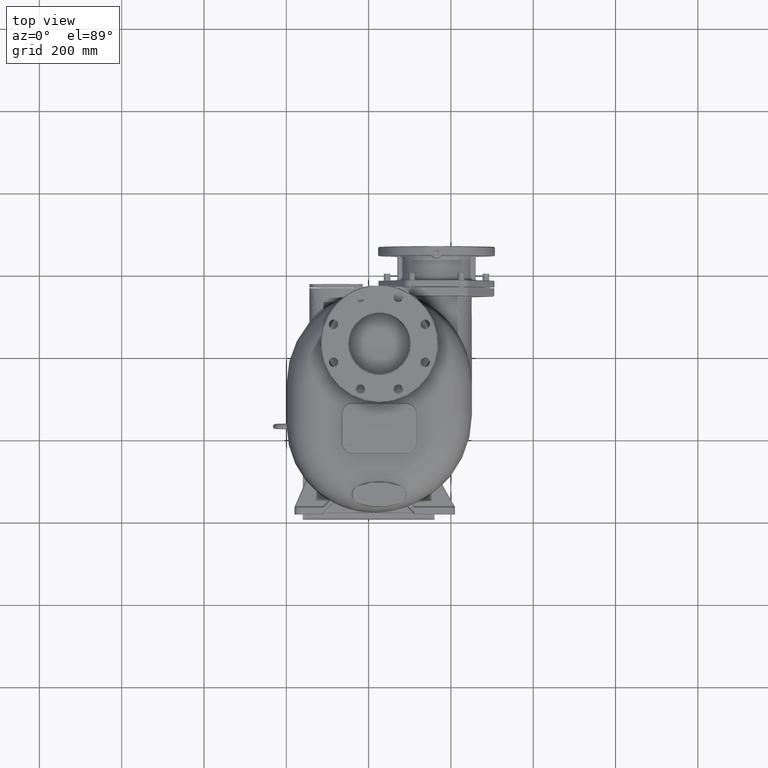
[diagram: clean part render]
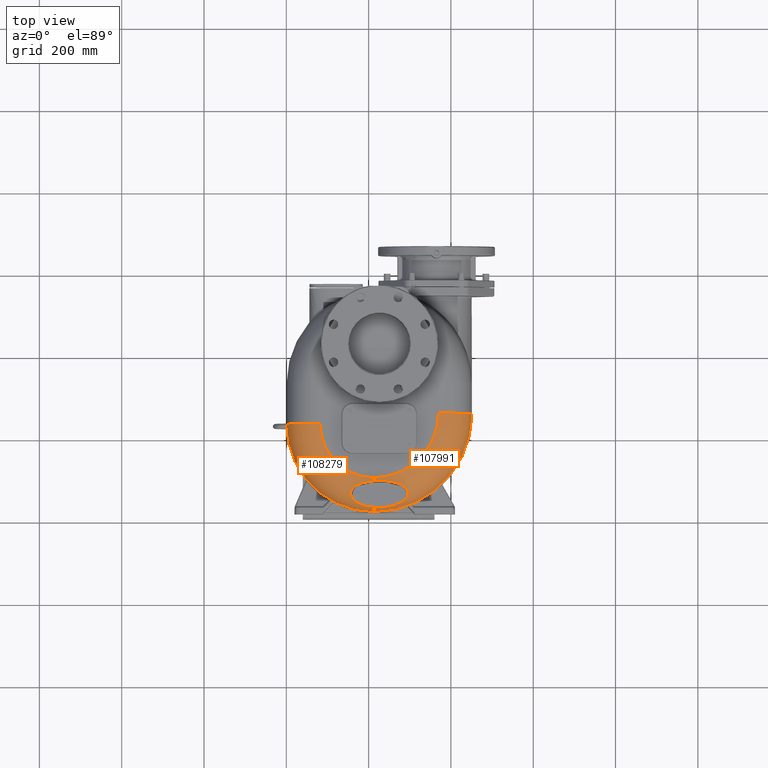
[diagram: same view with one multi-face feature highlighted, each face labeled with its STEP entity id]
A machine part, top view. The highlighted faces form ONE feature: a constant-radius fillet chain: 2 tangent blend faces with common blend radius 81 mm. The faces share edges in the B-rep.
Their STEP definitions:
[1] entity #108279 (Torus):
#38535=CARTESIAN_POINT('',(1.3E1,2.16E2,9.4E1));
#38536=DIRECTION('',(0.E0,0.E0,1.E0));
#38537=DIRECTION('',(-1.E0,0.E0,0.E0));
#38538=AXIS2_PLACEMENT_3D('',#38535,#38536,#38537);
#41311=CARTESIAN_POINT('',(1.3E1,1.363278025361E1,1.323108332678E2));
#41479=CARTESIAN_POINT('',(1.299999999999E1,7.784065249736E1,1.746829829849E2));
#41481=CARTESIAN_POINT('',(1.3E1,8.5E1,9.4E1));
#41482=DIRECTION('',(1.E0,0.E0,0.E0));
#41483=DIRECTION('',(0.E0,0.E0,1.E0));
#41484=AXIS2_PLACEMENT_3D('',#41481,#41482,#41483);
#41486=CARTESIAN_POINT('',(1.3E1,8.5E1,9.4E1));
#41487=DIRECTION('',(1.E0,0.E0,0.E0));
#41488=DIRECTION('',(0.E0,-8.810767869925E-1,4.729732502194E-1));
#41489=AXIS2_PLACEMENT_3D('',#41486,#41487,#41488);
#41501=CARTESIAN_POINT('',(1.299999999999E1,7.784065249736E1,1.746829829849E2));
#41502=CARTESIAN_POINT('',(1.244553714829E1,7.779806956061E1,1.746792044707E2));
#41503=CARTESIAN_POINT('',(1.134183423742E1,7.770769678981E1,1.746705265707E2));
#41504=CARTESIAN_POINT('',(9.699757664950E0,7.755644554239E1,1.746539980732E2));
#41505=CARTESIAN_POINT('',(8.073686977598E0,7.738987062858E1,1.746338156008E2));
#41506=CARTESIAN_POINT('',(6.464871554986E0,7.720826024393E1,1.746098034248E2));
#41507=CARTESIAN_POINT('',(4.874892532193E0,7.701193222903E1,1.745817665249E2));
#41508=CARTESIAN_POINT('',(3.305221677656E0,7.680129409235E1,1.745495026881E2));
#41509=CARTESIAN_POINT('',(1.757354840660E0,7.657672612600E1,1.745127966902E2));
#41510=CARTESIAN_POINT('',(2.327840045208E-1,7.633868265683E1,
1.744714366868E2));
#41511=CARTESIAN_POINT('',(-1.267102820674E0,7.608766265939E1,
1.744252171906E2));
#41512=CARTESIAN_POINT('',(-2.741278317563E0,7.582407887206E1,
1.743739243866E2));
#41513=CARTESIAN_POINT('',(-4.188675821983E0,7.554845477320E1,
1.743173675814E2));
#41514=CARTESIAN_POINT('',(-5.608395762124E0,7.526126693898E1,
1.742553626895E2));
#41515=CARTESIAN_POINT('',(-6.999655913846E0,7.496298881410E1,
1.741877398661E2));
#41516=CARTESIAN_POINT('',(-8.361678124405E0,7.465418207784E1,
1.741143627067E2));
#41517=CARTESIAN_POINT('',(-9.693975672295E0,7.433528675545E1,
1.740350946851E2));
#41518=CARTESIAN_POINT('',(-1.099609739216E1,7.400680699593E1,
1.739498308758E2));
#41519=CARTESIAN_POINT('',(-1.226767437093E1,7.366925276322E1,
1.738584917382E2));
#41520=CARTESIAN_POINT('',(-1.350851520461E1,7.332304365442E1,
1.737610035583E2));
#41521=CARTESIAN_POINT('',(-1.471843317636E1,7.296868929554E1,
1.736573333258E2));
#41522=CARTESIAN_POINT('',(-1.589738334766E1,7.260662232571E1,
1.735474568272E2));
#41523=CARTESIAN_POINT('',(-1.704543289633E1,7.223723652061E1,
1.734313621872E2));
#41524=CARTESIAN_POINT('',(-1.816265632786E1,7.186099452472E1,
1.733090748611E2));
#41525=CARTESIAN_POINT('',(-1.924953530315E1,7.147815799064E1,
1.731805843151E2));
#41526=CARTESIAN_POINT('',(-2.030663207400E1,7.108897382508E1,
1.730458859410E2));
#41527=CARTESIAN_POINT('',(-2.133450229444E1,7.069370194106E1,
1.729049902444E2));
#41528=CARTESIAN_POINT('',(-2.233355721686E1,7.029260673208E1,
1.727579287663E2));
#41529=CARTESIAN_POINT('',(-2.330429596845E1,6.988595527585E1,
1.726047416117E2));
#41530=CARTESIAN_POINT('',(-2.424712006149E1,6.947402624871E1,
1.724454891947E2));
#41531=CARTESIAN_POINT('',(-2.516231376310E1,6.905709820622E1,
1.722802523382E2));
#41532=CARTESIAN_POINT('',(-2.605023196009E1,6.863547384452E1,
1.721091271209E2));
#41533=CARTESIAN_POINT('',(-2.691130291511E1,6.820937749631E1,
1.719321956842E2));
#41534=CARTESIAN_POINT('',(-2.774600626023E1,6.777898041427E1,
1.717495296289E2));
#41535=CARTESIAN_POINT('',(-2.855485980441E1,6.734446434950E1,
1.715612059047E2));
#41536=CARTESIAN_POINT('',(-2.933832526555E1,6.690597423986E1,
1.713672999634E2));
#41537=CARTESIAN_POINT('',(-3.009689199644E1,6.646363050161E1,
1.711678809135E2));
#41538=CARTESIAN_POINT('',(-3.083107712075E1,6.601754925964E1,
1.709630157399E2));
#41539=CARTESIAN_POINT('',(-3.154136302940E1,6.556779713466E1,
1.707527595090E2));
#41540=CARTESIAN_POINT('',(-3.222826967108E1,6.511441280380E1,
1.705371531770E2));
#41541=CARTESIAN_POINT('',(-3.289230513240E1,6.465743196281E1,
1.703162347739E2));
#41542=CARTESIAN_POINT('',(-3.353393277120E1,6.419685430015E1,
1.700900311895E2));
#41543=CARTESIAN_POINT('',(-3.415364822003E1,6.373264772798E1,
1.698585497718E2));
#41544=CARTESIAN_POINT('',(-3.475192461521E1,6.326477189168E1,
1.696217907795E2));
#41545=CARTESIAN_POINT('',(-3.532921277068E1,6.279313686223E1,
1.693797316946E2));
#41546=CARTESIAN_POINT('',(-3.588597510124E1,6.231762193331E1,
1.691323275721E2));
#41547=CARTESIAN_POINT('',(-3.642256581178E1,6.183816511085E1,
1.688795595075E2));
#41548=CARTESIAN_POINT('',(-3.693930659569E1,6.135467015010E1,
1.686213922855E2));
#41549=CARTESIAN_POINT('',(-3.743658527980E1,6.086696124701E1,
1.683577407041E2));
#41550=CARTESIAN_POINT('',(-3.791487104957E1,6.037473120906E1,
1.680884414929E2));
#41551=CARTESIAN_POINT('',(-3.837471269326E1,5.987744850791E1,
1.678132017963E2));
#41552=CARTESIAN_POINT('',(-3.881583869027E1,5.937544641962E1,
1.675321945618E2));
#41553=CARTESIAN_POINT('',(-3.923747269391E1,5.886974695742E1,
1.672459947355E2));
#41554=CARTESIAN_POINT('',(-3.963905052886E1,5.836126740473E1,
1.669551479588E2));
#41555=CARTESIAN_POINT('',(-4.002032380338E1,5.785076549029E1,
1.666601170991E2));
#41556=CARTESIAN_POINT('',(-4.038108776787E1,5.733902292176E1,
1.663614002514E2));
#41557=CARTESIAN_POINT('',(-4.072139032272E1,5.682658040855E1,
1.660593720981E2));
#41558=CARTESIAN_POINT('',(-4.104202588443E1,5.631294017186E1,
1.657537844266E2));
#41559=CARTESIAN_POINT('',(-4.134360714781E1,5.579758926457E1,
1.654443759204E2));
#41560=CARTESIAN_POINT('',(-4.162656769299E1,5.528021011734E1,
1.651309861998E2));
#41561=CARTESIAN_POINT('',(-4.189117326028E1,5.476076291256E1,
1.648136102591E2));
#41562=CARTESIAN_POINT('',(-4.213763819879E1,5.423909566732E1,
1.644921850345E2));
#41563=CARTESIAN_POINT('',(-4.236619668327E1,5.371506110908E1,
1.641666337636E2));
#41564=CARTESIAN_POINT('',(-4.257704636E1,5.318848140098E1,1.638368572977E2));
#41565=CARTESIAN_POINT('',(-4.277029309083E1,5.265914533418E1,
1.635027412343E2));
#41566=CARTESIAN_POINT('',(-4.294603204900E1,5.212698789890E1,
1.631642434889E2));
#41567=CARTESIAN_POINT('',(-4.310428463705E1,5.159192735310E1,
1.628213191196E2));
#41568=CARTESIAN_POINT('',(-4.324503448823E1,5.105385610728E1,
1.624739071713E2));
#41569=CARTESIAN_POINT('',(-4.336830161882E1,5.051264027936E1,
1.621219140664E2));
#41570=CARTESIAN_POINT('',(-4.347400464703E1,4.996809939680E1,
1.617652269064E2));
#41571=CARTESIAN_POINT('',(-4.356202294576E1,4.942023901915E1,
1.614038455106E2));
#41572=CARTESIAN_POINT('',(-4.363221984911E1,4.886925258604E1,
1.610378902978E2));
#41573=CARTESIAN_POINT('',(-4.368440275502E1,4.831530104518E1,
1.606674775312E2));
#41574=CARTESIAN_POINT('',(-4.371843370374E1,4.775855899149E1,
1.602927234528E2));
#41575=CARTESIAN_POINT('',(-4.372891983878E1,4.738571796670E1,
1.600401176294E2));
#41576=CARTESIAN_POINT('',(-4.373108258469E1,4.719886811485E1,
1.599131193948E2));
#41578=CARTESIAN_POINT('',(-4.373108258469E1,4.719886811485E1,
1.599131193948E2));
#41579=CARTESIAN_POINT('',(-4.373328602502E1,4.700848269575E1,
1.597837170996E2));
#41580=CARTESIAN_POINT('',(-4.373140112179E1,4.662668044502E1,
1.595233511070E2));
#41581=CARTESIAN_POINT('',(-4.370945965032E1,4.605088534469E1,
1.591281122762E2));
#41582=CARTESIAN_POINT('',(-4.366812490201E1,4.547215729344E1,
1.587283050793E2));
#41583=CARTESIAN_POINT('',(-4.360711615494E1,4.489062862121E1,
1.583240321315E2));
#41584=CARTESIAN_POINT('',(-4.352616600458E1,4.430643492682E1,
1.579153964054E2));
#41585=CARTESIAN_POINT('',(-4.342495290027E1,4.371974257819E1,
1.575025377004E2));
#41586=CARTESIAN_POINT('',(-4.330318254168E1,4.313069496100E1,
1.570855739380E2));
#41587=CARTESIAN_POINT('',(-4.316053802502E1,4.253943355180E1,
1.566646272013E2));
#41588=CARTESIAN_POINT('',(-4.299667706911E1,4.194613493709E1,
1.562398542652E2));
#41589=CARTESIAN_POINT('',(-4.281126534453E1,4.135090321656E1,
1.558113531328E2));
#41590=CARTESIAN_POINT('',(-4.260392506802E1,4.075387644003E1,
1.553792576938E2));
#41591=CARTESIAN_POINT('',(-4.237427091184E1,4.015519811587E1,
1.549437076773E2));
#41592=CARTESIAN_POINT('',(-4.212190553704E1,3.955496744026E1,
1.545048065442E2));
#41593=CARTESIAN_POINT('',(-4.184640122315E1,3.895334601246E1,
1.540627151575E2));
#41594=CARTESIAN_POINT('',(-4.154731188310E1,3.835043810977E1,
1.536175478291E2));
#41595=CARTESIAN_POINT('',(-4.122415583112E1,3.774633078482E1,
1.531694067797E2));
#41596=CARTESIAN_POINT('',(-4.087643167830E1,3.714117160195E1,
1.527184475588E2));
#41597=CARTESIAN_POINT('',(-4.050359138797E1,3.653501604646E1,
1.522647486492E2));
#41598=CARTESIAN_POINT('',(-4.010506481121E1,3.592796824646E1,
1.518084283301E2));
#41599=CARTESIAN_POINT('',(-3.968024760013E1,3.532014404002E1,
1.513496166203E2));
#41600=CARTESIAN_POINT('',(-3.922846373576E1,3.471157536535E1,
1.508883710899E2));
#41601=CARTESIAN_POINT('',(-3.874904123229E1,3.410238646464E1,
1.504248220674E2));
#41602=CARTESIAN_POINT('',(-3.824122417929E1,3.349264892677E1,
1.499590580078E2));
#41603=CARTESIAN_POINT('',(-3.770420256213E1,3.288241297546E1,
1.494911412633E2));
#41604=CARTESIAN_POINT('',(-3.713717785446E1,3.227182042241E1,
1.490212042292E2));
#41605=CARTESIAN_POINT('',(-3.653920718424E1,3.166092060651E1,
1.485493036616E2));
#41606=CARTESIAN_POINT('',(-3.590935610721E1,3.104982130692E1,
1.480755276740E2));
#41607=CARTESIAN_POINT('',(-3.524665138775E1,3.043867407269E1,
1.475999965984E2));
#41608=CARTESIAN_POINT('',(-3.454996339584E1,2.982755889257E1,
1.471227668542E2));
#41609=CARTESIAN_POINT('',(-3.381823702834E1,2.921666364747E1,
1.466439576921E2));
#41610=CARTESIAN_POINT('',(-3.305027296729E1,2.860615943068E1,
1.461636763300E2));
#41611=CARTESIAN_POINT('',(-3.224479554426E1,2.799621995452E1,
1.456820125657E2));
#41612=CARTESIAN_POINT('',(-3.140060471589E1,2.738712020579E1,
1.451991091460E2));
#41613=CARTESIAN_POINT('',(-3.051626813873E1,2.677910091009E1,
1.447150876028E2));
#41614=CARTESIAN_POINT('',(-2.959043347079E1,2.617248276108E1,
1.442300895049E2));
#41615=CARTESIAN_POINT('',(-2.862168332938E1,2.556762996023E1,
1.437442737535E2));
#41616=CARTESIAN_POINT('',(-2.760838843727E1,2.496489670781E1,
1.432577827151E2));
#41617=CARTESIAN_POINT('',(-2.654906152911E1,2.436472925261E1,
1.427707661609E2));
#41618=CARTESIAN_POINT('',(-2.544214528891E1,2.376769595105E1,
1.422834806852E2));
#41619=CARTESIAN_POINT('',(-2.428614927735E1,2.317443813252E1,
1.417961899347E2));
#41620=CARTESIAN_POINT('',(-2.307968137192E1,2.258566726630E1,
1.413091517248E2));
#41621=CARTESIAN_POINT('',(-2.182120993267E1,2.200221520214E1,
1.408227468673E2));
#41622=CARTESIAN_POINT('',(-2.050940147683E1,2.142495840037E1,
1.403372889723E2));
#41623=CARTESIAN_POINT('',(-1.914280870690E1,2.085483320171E1,
1.398531196365E2));
#41624=CARTESIAN_POINT('',(-1.771988730485E1,2.029284079069E1,
1.393706024780E2));
#41625=CARTESIAN_POINT('',(-1.623927532923E1,1.974002559565E1,
1.388900179869E2));
#41626=CARTESIAN_POINT('',(-1.469973804761E1,1.919766687025E1,
1.384118644196E2));
#41627=CARTESIAN_POINT('',(-1.310016541215E1,1.866706271912E1,
1.379365480712E2));
#41628=CARTESIAN_POINT('',(-1.143969446494E1,1.814962668174E1,
1.374645003529E2));
#41629=CARTESIAN_POINT('',(-9.717864821511E0,1.764703194106E1,
1.369963978263E2));
#41630=CARTESIAN_POINT('',(-7.934295919351E0,1.716085147903E1,
1.365326787705E2));
#41631=CARTESIAN_POINT('',(-6.089090868848E0,1.669289986537E1,
1.360740179738E2));
#41632=CARTESIAN_POINT('',(-4.182658384068E0,1.624505220818E1,
1.356211153244E2));
#41633=CARTESIAN_POINT('',(-2.215559436378E0,1.581910009717E1,
1.351744779454E2));
#41634=CARTESIAN_POINT('',(-1.903477044404E-1,1.541735592529E1,
1.347352575325E2));
#41635=CARTESIAN_POINT('',(1.890348004364E0,1.504187561523E1,1.343043200259E2));
#41636=CARTESIAN_POINT('',(4.023311504254E0,1.469468663020E1,1.338825773627E2));
#41637=CARTESIAN_POINT('',(6.204466846682E0,1.437788619058E1,1.334712230803E2));
#41638=CARTESIAN_POINT('',(8.429555363647E0,1.409321195766E1,1.330711012472E2));
#41639=CARTESIAN_POINT('',(1.069473223705E1,1.384229823454E1,1.326831531908E2));
#41640=CARTESIAN_POINT('',(1.222763649690E1,1.369860986193E1,1.324334637403E2));
#41641=CARTESIAN_POINT('',(1.3E1,1.363278025361E1,1.323108332678E2));
#41643=CARTESIAN_POINT('',(-1.18E2,2.16E2,9.4E1));
#41644=DIRECTION('',(0.E0,-1.E0,0.E0));
#41645=DIRECTION('',(0.E0,0.E0,1.E0));
#41646=AXIS2_PLACEMENT_3D('',#41643,#41644,#41645);
#42371=CARTESIAN_POINT('',(1.3E1,2.16E2,1.75E2));
#42372=DIRECTION('',(0.E0,0.E0,1.E0));
#42373=DIRECTION('',(-1.E0,0.E0,0.E0));
#42374=AXIS2_PLACEMENT_3D('',#42371,#42372,#42373);
#54194=CARTESIAN_POINT('',(-1.99E2,2.160000000004E2,9.4E1));
#54196=VERTEX_POINT('',#54194);
#54251=CARTESIAN_POINT('',(1.3E1,8.5E1,1.75E2));
#54252=VERTEX_POINT('',#54251);
#54253=CARTESIAN_POINT('',(1.3E1,4.E0,9.4E1));
#54254=VERTEX_POINT('',#54253);
#54255=CARTESIAN_POINT('',(-1.18E2,2.16E2,1.75E2));
#54256=VERTEX_POINT('',#54255);
#54259=VERTEX_POINT('',#41311);
#54262=VERTEX_POINT('',#41479);
#54264=VERTEX_POINT('',#41576);
#108262=CARTESIAN_POINT('',(1.3E1,2.16E2,9.4E1));
#108263=DIRECTION('',(0.E0,0.E0,-1.E0));
#108264=DIRECTION('',(-9.999684504718E-1,7.943428798761E-3,0.E0));
#108265=AXIS2_PLACEMENT_3D('',#108262,#108263,#108264);
#108266=TOROIDAL_SURFACE('',#108265,1.31E2,8.1E1);
#108268=ORIENTED_EDGE('',*,*,#108267,.T.);
#108269=ORIENTED_EDGE('',*,*,#108252,.T.);
#108270=ORIENTED_EDGE('',*,*,#107987,.T.);
#108271=ORIENTED_EDGE('',*,*,#105283,.F.);
#108273=ORIENTED_EDGE('',*,*,#108272,.F.);
#108275=ORIENTED_EDGE('',*,*,#108274,.T.);
#108276=ORIENTED_EDGE('',*,*,#107980,.T.);
#108277=EDGE_LOOP('',(#108268,#108269,#108270,#108271,#108273,#108275,#108276));
#108278=FACE_OUTER_BOUND('',#108277,.F.);
#108279=ADVANCED_FACE('',(#108278),#108266,.T.);
#38539=CIRCLE('',#38538,2.12E2);
#41485=CIRCLE('',#41484,8.1E1);
#41490=CIRCLE('',#41489,8.1E1);
#41577=B_SPLINE_CURVE_WITH_KNOTS('',3,(#41501,#41502,#41503,#41504,#41505,
#41506,#41507,#41508,#41509,#41510,#41511,#41512,#41513,#41514,#41515,#41516,
#41517,#41518,#41519,#41520,#41521,#41522,#41523,#41524,#41525,#41526,#41527,
#41528,#41529,#41530,#41531,#41532,#41533,#41534,#41535,#41536,#41537,#41538,
#41539,#41540,#41541,#41542,#41543,#41544,#41545,#41546,#41547,#41548,#41549,
#41550,#41551,#41552,#41553,#41554,#41555,#41556,#41557,#41558,#41559,#41560,
#41561,#41562,#41563,#41564,#41565,#41566,#41567,#41568,#41569,#41570,#41571,
#41572,#41573,#41574,#41575,#41576),.UNSPECIFIED.,.F.,.F.,(4,1,1,1,1,1,1,1,1,1,
1,1,1,1,1,1,1,1,1,1,1,1,1,1,1,1,1,1,1,1,1,1,1,1,1,1,1,1,1,1,1,1,1,1,1,1,1,1,1,1,
1,1,1,1,1,1,1,1,1,1,1,1,1,1,1,1,1,1,1,1,1,1,1,4),(0.E0,1.369863013699E-2,
2.739726027397E-2,4.109589041096E-2,5.479452054795E-2,6.849315068493E-2,
8.219178082192E-2,9.589041095890E-2,1.095890410959E-1,1.232876712329E-1,
1.369863013699E-1,1.506849315068E-1,1.643835616438E-1,1.780821917808E-1,
1.917808219178E-1,2.054794520548E-1,2.191780821918E-1,2.328767123288E-1,
2.465753424658E-1,2.602739726027E-1,2.739726027397E-1,2.876712328767E-1,
3.013698630137E-1,3.150684931507E-1,3.287671232877E-1,3.424657534247E-1,
3.561643835616E-1,3.698630136986E-1,3.835616438356E-1,3.972602739726E-1,
4.109589041096E-1,4.246575342466E-1,4.383561643836E-1,4.520547945205E-1,
4.657534246575E-1,4.794520547945E-1,4.931506849315E-1,5.068493150685E-1,
5.205479452055E-1,5.342465753425E-1,5.479452054795E-1,5.616438356164E-1,
5.753424657534E-1,5.890410958904E-1,6.027397260274E-1,6.164383561644E-1,
6.301369863014E-1,6.438356164384E-1,6.575342465753E-1,6.712328767123E-1,
6.849315068493E-1,6.986301369863E-1,7.123287671233E-1,7.260273972603E-1,
7.397260273973E-1,7.534246575342E-1,7.671232876712E-1,7.808219178082E-1,
7.945205479452E-1,8.082191780822E-1,8.219178082192E-1,8.356164383562E-1,
8.493150684932E-1,8.630136986301E-1,8.767123287671E-1,8.904109589041E-1,
9.041095890411E-1,9.178082191781E-1,9.315068493151E-1,9.452054794521E-1,
9.589041095890E-1,9.726027397260E-1,9.863013698630E-1,1.E0),.UNSPECIFIED.);
#41642=B_SPLINE_CURVE_WITH_KNOTS('',3,(#41578,#41579,#41580,#41581,#41582,
#41583,#41584,#41585,#41586,#41587,#41588,#41589,#41590,#41591,#41592,#41593,
#41594,#41595,#41596,#41597,#41598,#41599,#41600,#41601,#41602,#41603,#41604,
#41605,#41606,#41607,#41608,#41609,#41610,#41611,#41612,#41613,#41614,#41615,
#41616,#41617,#41618,#41619,#41620,#41621,#41622,#41623,#41624,#41625,#41626,
#41627,#41628,#41629,#41630,#41631,#41632,#41633,#41634,#41635,#41636,#41637,
#41638,#41639,#41640,#41641),.UNSPECIFIED.,.F.,.F.,(4,1,1,1,1,1,1,1,1,1,1,1,1,1,
1,1,1,1,1,1,1,1,1,1,1,1,1,1,1,1,1,1,1,1,1,1,1,1,1,1,1,1,1,1,1,1,1,1,1,1,1,1,1,1,
1,1,1,1,1,1,1,4),(0.E0,1.639344262295E-2,3.278688524590E-2,4.918032786885E-2,
6.557377049180E-2,8.196721311475E-2,9.836065573770E-2,1.147540983607E-1,
1.311475409836E-1,1.475409836066E-1,1.639344262295E-1,1.803278688525E-1,
1.967213114754E-1,2.131147540984E-1,2.295081967213E-1,2.459016393443E-1,
2.622950819672E-1,2.786885245902E-1,2.950819672131E-1,3.114754098361E-1,
3.278688524590E-1,3.442622950820E-1,3.606557377049E-1,3.770491803279E-1,
3.934426229508E-1,4.098360655738E-1,4.262295081967E-1,4.426229508197E-1,
4.590163934426E-1,4.754098360656E-1,4.918032786885E-1,5.081967213115E-1,
5.245901639344E-1,5.409836065574E-1,5.573770491803E-1,5.737704918033E-1,
5.901639344262E-1,6.065573770492E-1,6.229508196721E-1,6.393442622951E-1,
6.557377049180E-1,6.721311475410E-1,6.885245901639E-1,7.049180327869E-1,
7.213114754098E-1,7.377049180328E-1,7.540983606557E-1,7.704918032787E-1,
7.868852459016E-1,8.032786885246E-1,8.196721311475E-1,8.360655737705E-1,
8.524590163934E-1,8.688524590164E-1,8.852459016393E-1,9.016393442623E-1,
9.180327868852E-1,9.344262295082E-1,9.508196721311E-1,9.672131147541E-1,
9.836065573770E-1,1.E0),.UNSPECIFIED.);
#41647=CIRCLE('',#41646,8.1E1);
#42375=CIRCLE('',#42374,1.31E2);
#105283=EDGE_CURVE('',#54196,#54254,#38539,.T.);
#107980=EDGE_CURVE('',#54252,#54262,#41485,.T.);
#107987=EDGE_CURVE('',#54259,#54254,#41490,.T.);
#108252=EDGE_CURVE('',#54264,#54259,#41642,.T.);
#108267=EDGE_CURVE('',#54262,#54264,#41577,.T.);
#108272=EDGE_CURVE('',#54256,#54196,#41647,.T.);
#108274=EDGE_CURVE('',#54256,#54252,#42375,.T.);
[2] entity #107991 (Torus):
#39086=CARTESIAN_POINT('',(1.3E1,2.42E2,9.4E1));
#39087=DIRECTION('',(0.E0,0.E0,1.E0));
#39088=DIRECTION('',(0.E0,-1.E0,0.E0));
#39089=AXIS2_PLACEMENT_3D('',#39086,#39087,#39088);
#41311=CARTESIAN_POINT('',(1.3E1,1.363278025361E1,1.323108332678E2));
#41312=CARTESIAN_POINT('',(1.374555449030E1,1.356947936981E1,1.321929159865E2));
#41313=CARTESIAN_POINT('',(1.524084312153E1,1.345455072807E1,1.319638233510E2));
#41314=CARTESIAN_POINT('',(1.749793679789E1,1.331721406541E1,1.316405377955E2));
#41315=CARTESIAN_POINT('',(1.976220701034E1,1.321540285107E1,1.313388376110E2));
#41316=CARTESIAN_POINT('',(2.202897011508E1,1.314914611051E1,1.310594774055E2));
#41317=CARTESIAN_POINT('',(2.429302126710E1,1.311841430698E1,1.308034259133E2));
#41318=CARTESIAN_POINT('',(2.654936909042E1,1.312288453073E1,1.305714059698E2));
#41319=CARTESIAN_POINT('',(2.879253267763E1,1.316203132697E1,1.303641189346E2));
#41320=CARTESIAN_POINT('',(3.101674278618E1,1.323507465947E1,1.301821588615E2));
#41321=CARTESIAN_POINT('',(3.321630553775E1,1.334092456779E1,1.300258495110E2));
#41322=CARTESIAN_POINT('',(3.538582157033E1,1.347841280720E1,1.298956415263E2));
#41323=CARTESIAN_POINT('',(3.751987319681E1,1.364606482799E1,1.297916810723E2));
#41324=CARTESIAN_POINT('',(3.961354069893E1,1.384216925607E1,1.297138265640E2));
#41325=CARTESIAN_POINT('',(4.166411083156E1,1.406519338546E1,1.296619765889E2));
#41326=CARTESIAN_POINT('',(4.366854482837E1,1.431336935544E1,1.296357107990E2));
#41327=CARTESIAN_POINT('',(4.562486243165E1,1.458501175040E1,1.296345710273E2));
#41328=CARTESIAN_POINT('',(4.753196597303E1,1.487854971024E1,1.296580666419E2));
#41329=CARTESIAN_POINT('',(4.938863645890E1,1.519228994133E1,1.297054573793E2));
#41330=CARTESIAN_POINT('',(5.119476029080E1,1.552480432405E1,1.297761310083E2));
#41331=CARTESIAN_POINT('',(5.295039370158E1,1.587468746011E1,1.298693537382E2));
#41332=CARTESIAN_POINT('',(5.465581021174E1,1.624059390064E1,1.299843304193E2));
#41333=CARTESIAN_POINT('',(5.631180013578E1,1.662139047255E1,1.301203787487E2));
#41334=CARTESIAN_POINT('',(5.791919304816E1,1.701595976922E1,1.302766966480E2));
#41335=CARTESIAN_POINT('',(5.947898473001E1,1.742332008604E1,1.304525560798E2));
#41336=CARTESIAN_POINT('',(6.099229934181E1,1.784259451904E1,1.306472512651E2));
#41337=CARTESIAN_POINT('',(6.246034021823E1,1.827297211061E1,1.308600437599E2));
#41338=CARTESIAN_POINT('',(6.388424488894E1,1.871372939236E1,1.310902707221E2));
#41339=CARTESIAN_POINT('',(6.526527235066E1,1.916422670904E1,1.313372636215E2));
#41340=CARTESIAN_POINT('',(6.660461685288E1,1.962387951190E1,1.316003771177E2));
#41341=CARTESIAN_POINT('',(6.790337406105E1,2.009214708328E1,1.318789948743E2));
#41342=CARTESIAN_POINT('',(6.916276597328E1,2.056858203436E1,1.321725244732E2));
#41343=CARTESIAN_POINT('',(7.038378803355E1,2.105272903275E1,1.324803776733E2));
#41344=CARTESIAN_POINT('',(7.156748310063E1,2.154420348146E1,1.328019992718E2));
#41345=CARTESIAN_POINT('',(7.271487294511E1,2.204266699685E1,1.331368547447E2));
#41346=CARTESIAN_POINT('',(7.382678815048E1,2.254775701753E1,1.334843961739E2));
#41347=CARTESIAN_POINT('',(7.490417352150E1,2.305920807460E1,1.338441350259E2));
#41348=CARTESIAN_POINT('',(7.594780450483E1,2.357672296699E1,1.342155565869E2));
#41349=CARTESIAN_POINT('',(7.695842569171E1,2.410003405992E1,1.345981686769E2));
#41350=CARTESIAN_POINT('',(7.793681314708E1,2.462893215547E1,1.349915192180E2));
#41351=CARTESIAN_POINT('',(7.888357244240E1,2.516315119328E1,1.353951091935E2));
#41352=CARTESIAN_POINT('',(7.979937482440E1,2.570250573226E1,1.358085079080E2));
#41353=CARTESIAN_POINT('',(8.068481012046E1,2.624679058739E1,1.362312618623E2));
#41354=CARTESIAN_POINT('',(8.154040366904E1,2.679579373420E1,1.366629148651E2));
#41355=CARTESIAN_POINT('',(8.236672217447E1,2.734936953940E1,1.371030703166E2));
#41356=CARTESIAN_POINT('',(8.316422303742E1,2.790731136185E1,1.375512711636E2));
#41357=CARTESIAN_POINT('',(8.393337852558E1,2.846946616968E1,1.380071182059E2));
#41358=CARTESIAN_POINT('',(8.467463859723E1,2.903568397904E1,1.384702104602E2));
#41359=CARTESIAN_POINT('',(8.538838898758E1,2.960578050749E1,1.389401160171E2));
#41360=CARTESIAN_POINT('',(8.607503727699E1,3.017963545908E1,1.394164729358E2));
#41361=CARTESIAN_POINT('',(8.673493992039E1,3.075708003004E1,1.398988645163E2));
#41362=CARTESIAN_POINT('',(8.736843292871E1,3.133796203254E1,1.403869006968E2));
#41363=CARTESIAN_POINT('',(8.797585213930E1,3.192215751081E1,1.408802221836E2));
#41364=CARTESIAN_POINT('',(8.855748941958E1,3.250948687114E1,1.413784109194E2));
#41365=CARTESIAN_POINT('',(8.911363189090E1,3.309981679914E1,1.418811095929E2));
#41366=CARTESIAN_POINT('',(8.964455076792E1,3.369299394010E1,1.423879383908E2));
#41367=CARTESIAN_POINT('',(9.015048998223E1,3.428883420617E1,1.428984913039E2));
#41368=CARTESIAN_POINT('',(9.063168742857E1,3.488719641385E1,1.434124191458E2));
#41369=CARTESIAN_POINT('',(9.108836342053E1,3.548788712883E1,1.439293170632E2));
#41370=CARTESIAN_POINT('',(9.152072324662E1,3.609071163010E1,1.444487901576E2));
#41371=CARTESIAN_POINT('',(9.192896344836E1,3.669549554336E1,1.449704750155E2));
#41372=CARTESIAN_POINT('',(9.231326869725E1,3.730200168700E1,1.454939456896E2));
#41373=CARTESIAN_POINT('',(9.267381641223E1,3.791001313679E1,1.460188110616E2));
#41374=CARTESIAN_POINT('',(9.301077692639E1,3.851930424899E1,1.465446803131E2));
#41375=CARTESIAN_POINT('',(9.332432350819E1,3.912960732484E1,1.470711247058E2));
#41376=CARTESIAN_POINT('',(9.361462412449E1,3.974068180711E1,1.475977579939E2));
#41377=CARTESIAN_POINT('',(9.388184153948E1,4.035224879858E1,1.481241656165E2));
#41378=CARTESIAN_POINT('',(9.412614830144E1,4.096400698443E1,1.486499190286E2));
#41379=CARTESIAN_POINT('',(9.434771132124E1,4.157567251161E1,1.491746235057E2));
#41380=CARTESIAN_POINT('',(9.454671811071E1,4.218694818094E1,1.496978756090E2));
#41381=CARTESIAN_POINT('',(9.472336679492E1,4.279754763319E1,1.502192922606E2));
#41382=CARTESIAN_POINT('',(9.487784233726E1,4.340718144728E1,1.507385054394E2));
#41383=CARTESIAN_POINT('',(9.501034644267E1,4.401549855094E1,1.512550967418E2));
#41384=CARTESIAN_POINT('',(9.512108529684E1,4.462215571993E1,1.517686710283E2));
#41385=CARTESIAN_POINT('',(9.521028024643E1,4.522685477822E1,1.522788843594E2));
#41386=CARTESIAN_POINT('',(9.527818802354E1,4.582936281408E1,1.527854503185E2));
#41387=CARTESIAN_POINT('',(9.532503650922E1,4.642944416094E1,1.532881003993E2));
#41388=CARTESIAN_POINT('',(9.535106683456E1,4.702687725904E1,1.537865824981E2));
#41389=CARTESIAN_POINT('',(9.535470739627E1,4.742318745853E1,1.541159068464E2));
#41390=CARTESIAN_POINT('',(9.535313771391E1,4.762085925553E1,1.542798226339E2));
#41392=CARTESIAN_POINT('',(9.535313771391E1,4.762085925553E1,1.542798226339E2));
#41393=CARTESIAN_POINT('',(9.535158046549E1,4.781691741832E1,1.544423996887E2));
#41394=CARTESIAN_POINT('',(9.534172661827E1,4.820798821862E1,1.547660308980E2));
#41395=CARTESIAN_POINT('',(9.530694732464E1,4.879153858810E1,1.552469256741E2));
#41396=CARTESIAN_POINT('',(9.525237073883E1,4.937170033012E1,1.557229646401E2));
#41397=CARTESIAN_POINT('',(9.517819314944E1,4.994826299052E1,1.561939544066E2));
#41398=CARTESIAN_POINT('',(9.508464989140E1,5.052102249796E1,1.566597004572E2));
#41399=CARTESIAN_POINT('',(9.497193550964E1,5.108975288240E1,1.571200135625E2));
#41400=CARTESIAN_POINT('',(9.484023676056E1,5.165439112657E1,1.575748336676E2));
#41401=CARTESIAN_POINT('',(9.468970706505E1,5.221498671247E1,1.580241895115E2));
#41402=CARTESIAN_POINT('',(9.452042641100E1,5.277155684404E1,1.584681018771E2));
#41403=CARTESIAN_POINT('',(9.433250757738E1,5.332413239216E1,1.589065847698E2));
#41404=CARTESIAN_POINT('',(9.412601087209E1,5.387272836058E1,1.593396506228E2));
#41405=CARTESIAN_POINT('',(9.390094647716E1,5.441736840637E1,1.597673262482E2));
#41406=CARTESIAN_POINT('',(9.365731798904E1,5.495818063820E1,1.601897007090E2));
#41407=CARTESIAN_POINT('',(9.339504330858E1,5.549524462615E1,1.606068435463E2));
#41408=CARTESIAN_POINT('',(9.311401723105E1,5.602867605303E1,1.610188425294E2));
#41409=CARTESIAN_POINT('',(9.281410447574E1,5.655862786975E1,1.614258031685E2));
#41410=CARTESIAN_POINT('',(9.249509024887E1,5.708518710029E1,1.618277977199E2));
#41411=CARTESIAN_POINT('',(9.215672515870E1,5.760854908487E1,1.622249585266E2));
#41412=CARTESIAN_POINT('',(9.179868863430E1,5.812889893846E1,1.626174111708E2));
#41413=CARTESIAN_POINT('',(9.142059959251E1,5.864636731508E1,1.630052469816E2));
#41414=CARTESIAN_POINT('',(9.102207403849E1,5.916113166212E1,1.633885668407E2));
#41415=CARTESIAN_POINT('',(9.060269218464E1,5.967326573026E1,1.637674053966E2));
#41416=CARTESIAN_POINT('',(9.016187580460E1,6.018298030003E1,1.641418927591E2));
#41417=CARTESIAN_POINT('',(8.969882063545E1,6.069071057770E1,1.645123023906E2));
#41418=CARTESIAN_POINT('',(8.921255958476E1,6.119684695184E1,1.648788790020E2));
#41419=CARTESIAN_POINT('',(8.870274918509E1,6.170110272967E1,1.652413590373E2));
#41420=CARTESIAN_POINT('',(8.816936683965E1,6.220292619056E1,1.655992920661E2));
#41421=CARTESIAN_POINT('',(8.761239062495E1,6.270177302325E1,1.659522527307E2));
#41422=CARTESIAN_POINT('',(8.703240965125E1,6.319670448315E1,1.662995351924E2));
#41423=CARTESIAN_POINT('',(8.643023728479E1,6.368672674218E1,1.666404219958E2));
#41424=CARTESIAN_POINT('',(8.580619880309E1,6.417136167087E1,1.669745766666E2));
#41425=CARTESIAN_POINT('',(8.515978863903E1,6.465082661331E1,1.673021358542E2));
#41426=CARTESIAN_POINT('',(8.449067039079E1,6.512513653549E1,1.676230990987E2));
#41427=CARTESIAN_POINT('',(8.379831156633E1,6.559441634409E1,1.679375383302E2));
#41428=CARTESIAN_POINT('',(8.308215865974E1,6.605878138114E1,1.682455083759E2));
#41429=CARTESIAN_POINT('',(8.234165568474E1,6.651828447914E1,1.685470251422E2));
#41430=CARTESIAN_POINT('',(8.157622617370E1,6.697295725393E1,1.688420876776E2));
#41431=CARTESIAN_POINT('',(8.078532277697E1,6.742280165738E1,1.691306688300E2));
#41432=CARTESIAN_POINT('',(7.996837531236E1,6.786777475055E1,1.694127200566E2));
#41433=CARTESIAN_POINT('',(7.912479599465E1,6.830782205317E1,1.696881846654E2));
#41434=CARTESIAN_POINT('',(7.825403907476E1,6.874286449017E1,1.699569862022E2));
#41435=CARTESIAN_POINT('',(7.735554245570E1,6.917276547454E1,1.702190278252E2));
#41436=CARTESIAN_POINT('',(7.642877167029E1,6.959737860701E1,1.704742056317E2));
#41437=CARTESIAN_POINT('',(7.547323004446E1,7.001653524537E1,1.707224052516E2));
#41438=CARTESIAN_POINT('',(7.448842477709E1,7.042999909520E1,1.709634945513E2));
#41439=CARTESIAN_POINT('',(7.347391052112E1,7.083754741465E1,1.711973473386E2));
#41440=CARTESIAN_POINT('',(7.242927937736E1,7.123891580083E1,1.714238293693E2));
#41441=CARTESIAN_POINT('',(7.135415807817E1,7.163378097129E1,1.716427978446E2));
#41442=CARTESIAN_POINT('',(7.024822214443E1,7.202185485215E1,1.718541296952E2));
#41443=CARTESIAN_POINT('',(6.911120060085E1,7.240277427429E1,1.720576922831E2));
#41444=CARTESIAN_POINT('',(6.794287372012E1,7.277615390168E1,1.722533629531E2));
#41445=CARTESIAN_POINT('',(6.674306832442E1,7.314164359585E1,1.724410455457E2));
#41446=CARTESIAN_POINT('',(6.551169515921E1,7.349879221529E1,1.726206357197E2));
#41447=CARTESIAN_POINT('',(6.424870852858E1,7.384718099399E1,1.727920612088E2));
#41448=CARTESIAN_POINT('',(6.295412666103E1,7.418639007246E1,1.729552720555E2));
#41449=CARTESIAN_POINT('',(6.162807533586E1,7.451591173362E1,1.731102218938E2));
#41450=CARTESIAN_POINT('',(6.027070178700E1,7.483531077657E1,1.732569109331E2));
#41451=CARTESIAN_POINT('',(5.888226534023E1,7.514409611057E1,1.733953525764E2));
#41452=CARTESIAN_POINT('',(5.746311762298E1,7.544174550661E1,1.735255837751E2));
#41453=CARTESIAN_POINT('',(5.601362639371E1,7.572781013281E1,1.736476883073E2));
#41454=CARTESIAN_POINT('',(5.453434101373E1,7.600174538463E1,1.737617569490E2));
#41455=CARTESIAN_POINT('',(5.302584817470E1,7.626305174979E1,1.738679219137E2));
#41456=CARTESIAN_POINT('',(5.148879738054E1,7.651125618231E1,1.739663486652E2));
#41457=CARTESIAN_POINT('',(4.992400309576E1,7.674581458037E1,1.740572161374E2));
#41458=CARTESIAN_POINT('',(4.833225306416E1,7.696627499115E1,1.741407475678E2));
#41459=CARTESIAN_POINT('',(4.671455235016E1,7.717214000754E1,1.742171773482E2));
#41460=CARTESIAN_POINT('',(4.507204591842E1,7.736291005654E1,1.742867599844E2));
#41461=CARTESIAN_POINT('',(4.340586654174E1,7.753817016881E1,1.743497810481E2));
#41462=CARTESIAN_POINT('',(4.171716124025E1,7.769746347388E1,1.744065340878E2));
#41463=CARTESIAN_POINT('',(4.000701094048E1,7.784040526037E1,1.744573313751E2));
#41464=CARTESIAN_POINT('',(3.827683973337E1,7.796660903105E1,1.745024805864E2));
#41465=CARTESIAN_POINT('',(3.652858319249E1,7.807565912617E1,1.745422779772E2));
#41466=CARTESIAN_POINT('',(3.476419529846E1,7.816725590452E1,1.745770289814E2));
#41467=CARTESIAN_POINT('',(3.298477535779E1,7.824111536502E1,1.746070393668E2));
#41468=CARTESIAN_POINT('',(3.119123310261E1,7.829697648165E1,1.746325963960E2));
#41469=CARTESIAN_POINT('',(2.938449858556E1,7.833463124442E1,1.746539632849E2));
#41470=CARTESIAN_POINT('',(2.756570393844E1,7.835392833068E1,1.746713737393E2));
#41471=CARTESIAN_POINT('',(2.573534404594E1,7.835477703971E1,1.746850329264E2));
#41472=CARTESIAN_POINT('',(2.389773536613E1,7.833700093219E1,1.746950718285E2));
#41473=CARTESIAN_POINT('',(2.205906377323E1,7.830059672400E1,1.747015977497E2));
#41474=CARTESIAN_POINT('',(2.022482491122E1,7.824577813919E1,1.747047109882E2));
#41475=CARTESIAN_POINT('',(1.839815145703E1,7.817248507951E1,1.747044601726E2));
#41476=CARTESIAN_POINT('',(1.658245740338E1,7.808084210558E1,1.747008651088E2));
#41477=CARTESIAN_POINT('',(1.478055333917E1,7.797104841513E1,1.746939104412E2));
#41478=CARTESIAN_POINT('',(1.359177182079E1,7.788607797407E1,1.746870133239E2));
#41479=CARTESIAN_POINT('',(1.299999999999E1,7.784065249736E1,1.746829829849E2));
#41481=CARTESIAN_POINT('',(1.3E1,8.5E1,9.4E1));
#41482=DIRECTION('',(1.E0,0.E0,0.E0));
#41483=DIRECTION('',(0.E0,0.E0,1.E0));
#41484=AXIS2_PLACEMENT_3D('',#41481,#41482,#41483);
#41486=CARTESIAN_POINT('',(1.3E1,8.5E1,9.4E1));
#41487=DIRECTION('',(1.E0,0.E0,0.E0));
#41488=DIRECTION('',(0.E0,-8.810767869925E-1,4.729732502194E-1));
#41489=AXIS2_PLACEMENT_3D('',#41486,#41487,#41488);
#42366=CARTESIAN_POINT('',(1.3E1,2.42E2,1.75E2));
#42367=DIRECTION('',(0.E0,0.E0,1.E0));
#42368=DIRECTION('',(0.E0,-1.E0,0.E0));
#42369=AXIS2_PLACEMENT_3D('',#42366,#42367,#42368);
#45189=CARTESIAN_POINT('',(1.7E2,2.42E2,9.4E1));
#45190=DIRECTION('',(0.E0,1.E0,0.E0));
#45191=DIRECTION('',(0.E0,0.E0,1.E0));
#45192=AXIS2_PLACEMENT_3D('',#45189,#45190,#45191);
#54140=CARTESIAN_POINT('',(2.51E2,2.42E2,9.4E1));
#54142=VERTEX_POINT('',#54140);
#54245=CARTESIAN_POINT('',(1.7E2,2.42E2,1.75E2));
#54247=VERTEX_POINT('',#54245);
#54251=CARTESIAN_POINT('',(1.3E1,8.5E1,1.75E2));
#54252=VERTEX_POINT('',#54251);
#54253=CARTESIAN_POINT('',(1.3E1,4.E0,9.4E1));
#54254=VERTEX_POINT('',#54253);
#54259=VERTEX_POINT('',#41311);
#54260=VERTEX_POINT('',#41390);
#54262=VERTEX_POINT('',#41479);
#107971=CARTESIAN_POINT('',(1.3E1,2.42E2,9.4E1));
#107972=DIRECTION('',(0.E0,0.E0,-1.E0));
#107973=DIRECTION('',(-7.075674636159E-3,-9.999749671009E-1,0.E0));
#107974=AXIS2_PLACEMENT_3D('',#107971,#107972,#107973);
#107975=TOROIDAL_SURFACE('',#107974,1.57E2,8.1E1);
#107977=ORIENTED_EDGE('',*,*,#107976,.T.);
#107979=ORIENTED_EDGE('',*,*,#107978,.T.);
#107981=ORIENTED_EDGE('',*,*,#107980,.F.);
#107983=ORIENTED_EDGE('',*,*,#107982,.T.);
#107985=ORIENTED_EDGE('',*,*,#107984,.T.);
#107986=ORIENTED_EDGE('',*,*,#105349,.F.);
#107988=ORIENTED_EDGE('',*,*,#107987,.F.);
#107989=EDGE_LOOP('',(#107977,#107979,#107981,#107983,#107985,#107986,#107988));
#107990=FACE_OUTER_BOUND('',#107989,.F.);
#107991=ADVANCED_FACE('',(#107990),#107975,.T.);
#39090=CIRCLE('',#39089,2.38E2);
#41391=B_SPLINE_CURVE_WITH_KNOTS('',3,(#41311,#41312,#41313,#41314,#41315,
#41316,#41317,#41318,#41319,#41320,#41321,#41322,#41323,#41324,#41325,#41326,
#41327,#41328,#41329,#41330,#41331,#41332,#41333,#41334,#41335,#41336,#41337,
#41338,#41339,#41340,#41341,#41342,#41343,#41344,#41345,#41346,#41347,#41348,
#41349,#41350,#41351,#41352,#41353,#41354,#41355,#41356,#41357,#41358,#41359,
#41360,#41361,#41362,#41363,#41364,#41365,#41366,#41367,#41368,#41369,#41370,
#41371,#41372,#41373,#41374,#41375,#41376,#41377,#41378,#41379,#41380,#41381,
#41382,#41383,#41384,#41385,#41386,#41387,#41388,#41389,#41390),.UNSPECIFIED.,
.F.,.F.,(4,1,1,1,1,1,1,1,1,1,1,1,1,1,1,1,1,1,1,1,1,1,1,1,1,1,1,1,1,1,1,1,1,1,1,
1,1,1,1,1,1,1,1,1,1,1,1,1,1,1,1,1,1,1,1,1,1,1,1,1,1,1,1,1,1,1,1,1,1,1,1,1,1,1,1,
1,1,4),(0.E0,1.298701298701E-2,2.597402597403E-2,3.896103896104E-2,
5.194805194805E-2,6.493506493506E-2,7.792207792208E-2,9.090909090909E-2,
1.038961038961E-1,1.168831168831E-1,1.298701298701E-1,1.428571428571E-1,
1.558441558442E-1,1.688311688312E-1,1.818181818182E-1,1.948051948052E-1,
2.077922077922E-1,2.207792207792E-1,2.337662337662E-1,2.467532467532E-1,
2.597402597403E-1,2.727272727273E-1,2.857142857143E-1,2.987012987013E-1,
3.116883116883E-1,3.246753246753E-1,3.376623376623E-1,3.506493506494E-1,
3.636363636364E-1,3.766233766234E-1,3.896103896104E-1,4.025974025974E-1,
4.155844155844E-1,4.285714285714E-1,4.415584415584E-1,4.545454545455E-1,
4.675324675325E-1,4.805194805195E-1,4.935064935065E-1,5.064935064935E-1,
5.194805194805E-1,5.324675324675E-1,5.454545454545E-1,5.584415584416E-1,
5.714285714286E-1,5.844155844156E-1,5.974025974026E-1,6.103896103896E-1,
6.233766233766E-1,6.363636363636E-1,6.493506493506E-1,6.623376623377E-1,
6.753246753247E-1,6.883116883117E-1,7.012987012987E-1,7.142857142857E-1,
7.272727272727E-1,7.402597402597E-1,7.532467532468E-1,7.662337662338E-1,
7.792207792208E-1,7.922077922078E-1,8.051948051948E-1,8.181818181818E-1,
8.311688311688E-1,8.441558441558E-1,8.571428571429E-1,8.701298701299E-1,
8.831168831169E-1,8.961038961039E-1,9.090909090909E-1,9.220779220779E-1,
9.350649350649E-1,9.480519480519E-1,9.610389610390E-1,9.740259740260E-1,
9.870129870130E-1,1.E0),.UNSPECIFIED.);
#41480=B_SPLINE_CURVE_WITH_KNOTS('',3,(#41392,#41393,#41394,#41395,#41396,
#41397,#41398,#41399,#41400,#41401,#41402,#41403,#41404,#41405,#41406,#41407,
#41408,#41409,#41410,#41411,#41412,#41413,#41414,#41415,#41416,#41417,#41418,
#41419,#41420,#41421,#41422,#41423,#41424,#41425,#41426,#41427,#41428,#41429,
#41430,#41431,#41432,#41433,#41434,#41435,#41436,#41437,#41438,#41439,#41440,
#41441,#41442,#41443,#41444,#41445,#41446,#41447,#41448,#41449,#41450,#41451,
#41452,#41453,#41454,#41455,#41456,#41457,#41458,#41459,#41460,#41461,#41462,
#41463,#41464,#41465,#41466,#41467,#41468,#41469,#41470,#41471,#41472,#41473,
#41474,#41475,#41476,#41477,#41478,#41479),.UNSPECIFIED.,.F.,.F.,(4,1,1,1,1,1,1,
1,1,1,1,1,1,1,1,1,1,1,1,1,1,1,1,1,1,1,1,1,1,1,1,1,1,1,1,1,1,1,1,1,1,1,1,1,1,1,1,
1,1,1,1,1,1,1,1,1,1,1,1,1,1,1,1,1,1,1,1,1,1,1,1,1,1,1,1,1,1,1,1,1,1,1,1,1,1,4),(
0.E0,1.176470588235E-2,2.352941176471E-2,3.529411764706E-2,4.705882352941E-2,
5.882352941176E-2,7.058823529412E-2,8.235294117647E-2,9.411764705882E-2,
1.058823529412E-1,1.176470588235E-1,1.294117647059E-1,1.411764705882E-1,
1.529411764706E-1,1.647058823529E-1,1.764705882353E-1,1.882352941176E-1,2.E-1,
2.117647058824E-1,2.235294117647E-1,2.352941176471E-1,2.470588235294E-1,
2.588235294118E-1,2.705882352941E-1,2.823529411765E-1,2.941176470588E-1,
3.058823529412E-1,3.176470588235E-1,3.294117647059E-1,3.411764705882E-1,
3.529411764706E-1,3.647058823529E-1,3.764705882353E-1,3.882352941176E-1,4.E-1,
4.117647058824E-1,4.235294117647E-1,4.352941176471E-1,4.470588235294E-1,
4.588235294118E-1,4.705882352941E-1,4.823529411765E-1,4.941176470588E-1,
5.058823529412E-1,5.176470588235E-1,5.294117647059E-1,5.411764705882E-1,
5.529411764706E-1,5.647058823529E-1,5.764705882353E-1,5.882352941176E-1,6.E-1,
6.117647058824E-1,6.235294117647E-1,6.352941176471E-1,6.470588235294E-1,
6.588235294118E-1,6.705882352941E-1,6.823529411765E-1,6.941176470588E-1,
7.058823529412E-1,7.176470588235E-1,7.294117647059E-1,7.411764705882E-1,
7.529411764706E-1,7.647058823529E-1,7.764705882353E-1,7.882352941176E-1,8.E-1,
8.117647058824E-1,8.235294117647E-1,8.352941176471E-1,8.470588235294E-1,
8.588235294118E-1,8.705882352941E-1,8.823529411765E-1,8.941176470588E-1,
9.058823529412E-1,9.176470588235E-1,9.294117647059E-1,9.411764705882E-1,
9.529411764706E-1,9.647058823529E-1,9.764705882353E-1,9.882352941176E-1,1.E0),
.UNSPECIFIED.);
#41485=CIRCLE('',#41484,8.1E1);
#41490=CIRCLE('',#41489,8.1E1);
#42370=CIRCLE('',#42369,1.57E2);
#45193=CIRCLE('',#45192,8.1E1);
#105349=EDGE_CURVE('',#54254,#54142,#39090,.T.);
#107976=EDGE_CURVE('',#54259,#54260,#41391,.T.);
#107978=EDGE_CURVE('',#54260,#54262,#41480,.T.);
#107980=EDGE_CURVE('',#54252,#54262,#41485,.T.);
#107982=EDGE_CURVE('',#54252,#54247,#42370,.T.);
#107984=EDGE_CURVE('',#54247,#54142,#45193,.T.);
#107987=EDGE_CURVE('',#54259,#54254,#41490,.T.);